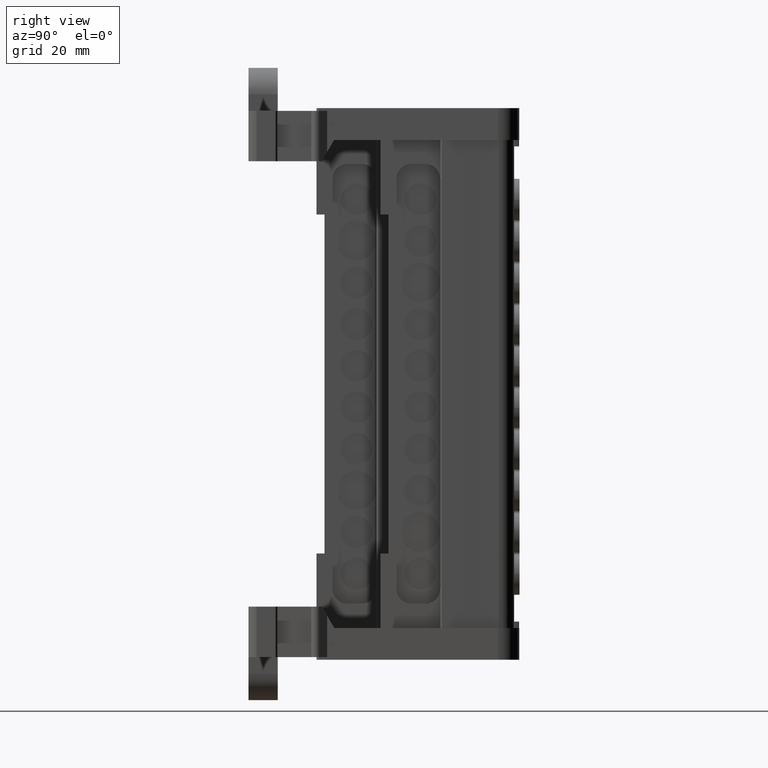
[diagram: clean part render]
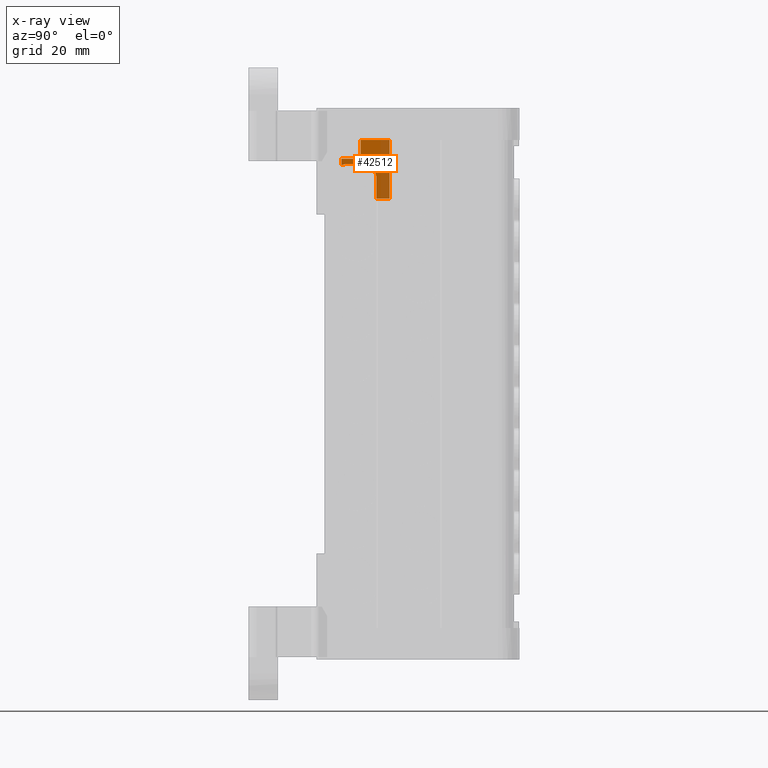
[diagram: x-ray — body ghosted, one internal face saturated and labeled with its STEP entity id]
A machine part, right view, then the same camera in x-ray: the body is ghosted and one INTERNAL B-rep face — a face not visible from any outside direction — is saturated and labeled: STEP entity #42512.
In plain terms, the highlighted planar face has unit normal (1, -0, -0).
Its self-contained STEP definition (entity closure, byte-faithful):
#4796 = VERTEX_POINT ( 'NONE', #48655 ) ;
#4915 = VERTEX_POINT ( 'NONE', #48793 ) ;
#4921 = VERTEX_POINT ( 'NONE', #48768 ) ;
#4931 = VERTEX_POINT ( 'NONE', #48825 ) ;
#4948 = VERTEX_POINT ( 'NONE', #48869 ) ;
#4972 = VERTEX_POINT ( 'NONE', #48863 ) ;
#4979 = VERTEX_POINT ( 'NONE', #48851 ) ;
#5005 = VERTEX_POINT ( 'NONE', #48882 ) ;
#5838 = B_SPLINE_CURVE_WITH_KNOTS ( 'NONE', 3,
 ( #61246, #61195, #61197, #61212 ),
 .UNSPECIFIED., .F., .F.,
 ( 4, 4 ),
 ( 0.0000000000000000000, 1.000000000000000000 ),
 .UNSPECIFIED. ) ;
#5880 = B_SPLINE_CURVE_WITH_KNOTS ( 'NONE', 3,
 ( #61111, #61220, #61225, #61262, #61202, #61193, #61252, #61272, #61208, #61236, #61199, #61206, #61210, #61243, #61266, #61238, #61254, #61245, #61191, #61222 ),
 .UNSPECIFIED., .F., .F.,
 ( 4, 1, 1, 1, 2, 2, 2, 1, 1, 1, 2, 2, 4 ),
 ( 0.0000000000000000000, 0.1250000000000267300, 0.1875000000000413300, 0.2187500000000492900, 0.2343750000000525100, 0.2500000000000556800, 0.5000000000000531800, 0.6250000000000504000, 0.6875000000000496300, 0.7187500000000486300, 0.7343750000000460700, 0.7500000000000435200, 1.000000000000000000 ),
 .UNSPECIFIED. ) ;
#8784 = VECTOR ( 'NONE', #61188, 1000.000000000000000 ) ;
#8795 = VECTOR ( 'NONE', #61336, 1000.000000000000000 ) ;
#8803 = VECTOR ( 'NONE', #61305, 1000.000000000000000 ) ;
#8817 = VECTOR ( 'NONE', #61540, 1000.000000000000000 ) ;
#8818 = VECTOR ( 'NONE', #61487, 1000.000000000000000 ) ;
#8836 = VECTOR ( 'NONE', #62298, 1000.000000000000000 ) ;
#15258 = CARTESIAN_POINT ( 'NONE',  ( -60.06949500594811300, 25.13621747466066500, 56.47722167457900600 ) ) ;
#15259 = LINE ( 'NONE', #15258, #25612 ) ;
#15277 = DIRECTION ( 'NONE',  ( 3.469446952988454100E-018, -4.572554536231870400E-031, 1.000000000000000000 ) ) ;
#23765 = EDGE_CURVE ( 'NONE', #58309, #58452, #84251, .T. ) ;
#25612 = VECTOR ( 'NONE', #15277, 1000.000000000000000 ) ;
#42512 = ADVANCED_FACE ( 'NONE', ( #61233 ), #61329, .T. ) ;
#45608 = EDGE_CURVE ( 'NONE', #4921, #4948, #5880, .T. ) ;
#45615 = EDGE_CURVE ( 'NONE', #4915, #4931, #5838, .T. ) ;
#45626 = EDGE_CURVE ( 'NONE', #5005, #4972, #61204, .T. ) ;
#45655 = EDGE_CURVE ( 'NONE', #4979, #4796, #61376, .T. ) ;
#45663 = EDGE_CURVE ( 'NONE', #4948, #4979, #61292, .T. ) ;
#45714 = EDGE_CURVE ( 'NONE', #4931, #4921, #61473, .T. ) ;
#45758 = EDGE_CURVE ( 'NONE', #4915, #4972, #61495, .T. ) ;
#46017 = EDGE_CURVE ( 'NONE', #58452, #5005, #62322, .T. ) ;
#47748 = ORIENTED_EDGE ( 'NONE', *, *, #69842, .T. ) ;
#47753 = ORIENTED_EDGE ( 'NONE', *, *, #45758, .F. ) ;
#47757 = ORIENTED_EDGE ( 'NONE', *, *, #23765, .T. ) ;
#47763 = ORIENTED_EDGE ( 'NONE', *, *, #45626, .T. ) ;
#47782 = ORIENTED_EDGE ( 'NONE', *, *, #46017, .T. ) ;
#47783 = ORIENTED_EDGE ( 'NONE', *, *, #45608, .T. ) ;
#48409 = ORIENTED_EDGE ( 'NONE', *, *, #45655, .T. ) ;
#48411 = ORIENTED_EDGE ( 'NONE', *, *, #45615, .T. ) ;
#48439 = ORIENTED_EDGE ( 'NONE', *, *, #45663, .T. ) ;
#48445 = ORIENTED_EDGE ( 'NONE', *, *, #45714, .T. ) ;
#48509 = CARTESIAN_POINT ( 'NONE',  ( -60.06949500594834700, 23.32882423996614900, 55.47218928989244800 ) ) ;
#48543 = CARTESIAN_POINT ( 'NONE',  ( -60.06949500594880900, 19.71403777057711800, 55.47218928989243400 ) ) ;
#48546 = CARTESIAN_POINT ( 'NONE',  ( -60.06949500594808500, 25.13621747466064300, 55.47218928989244800 ) ) ;
#48552 = CARTESIAN_POINT ( 'NONE',  ( -60.06949500594858900, 21.52143100527163000, 55.47218928989244800 ) ) ;
#48655 = CARTESIAN_POINT ( 'NONE',  ( -60.06949500594808500, 25.13621747466069000, 44.41683305832913900 ) ) ;
#48768 = CARTESIAN_POINT ( 'NONE',  ( -60.06949500594880900, 19.91373744683733400, 50.93757888755169500 ) ) ;
#48793 = CARTESIAN_POINT ( 'NONE',  ( -60.06949500594897300, 16.09475178553975300, 50.70458293993816300 ) ) ;
#48825 = CARTESIAN_POINT ( 'NONE',  ( -60.06949500594905100, 17.20544503260873600, 50.93757888755163800 ) ) ;
#48851 = CARTESIAN_POINT ( 'NONE',  ( -60.06949500594844000, 22.67757650472755800, 44.41683305832913900 ) ) ;
#48863 = CARTESIAN_POINT ( 'NONE',  ( -60.06949500594897300, 16.09475178553976300, 51.95457594348543800 ) ) ;
#48869 = CARTESIAN_POINT ( 'NONE',  ( -60.06949500594845400, 22.67757650472778500, 48.17373982966103100 ) ) ;
#48882 = CARTESIAN_POINT ( 'NONE',  ( -60.06949500594882400, 19.71403777057712500, 51.95457594348544500 ) ) ;
#58309 = VERTEX_POINT ( 'NONE', #58895 ) ;
#58452 = VERTEX_POINT ( 'NONE', #58955 ) ;
#58895 = CARTESIAN_POINT ( 'NONE',  ( -60.06949500594808500, 25.13621747466064300, 55.47218928989244800 ) ) ;
#58955 = CARTESIAN_POINT ( 'NONE',  ( -60.06949500594880900, 19.71403777057711800, 55.47218928989243400 ) ) ;
#61111 = CARTESIAN_POINT ( 'NONE',  ( -60.06949500594880900, 19.91373744683733400, 50.93757888755169500 ) ) ;
#61188 = DIRECTION ( 'NONE',  ( -1.317949113559220200E-013, -1.000000000000000000, -0.0000000000000000000 ) ) ;
#61191 = CARTESIAN_POINT ( 'NONE',  ( -60.06949500594846100, 22.67731568486657800, 48.52623170105782400 ) ) ;
#61193 = CARTESIAN_POINT ( 'NONE',  ( -60.06949500594867400, 20.84923332148967700, 50.77454396566470500 ) ) ;
#61195 = CARTESIAN_POINT ( 'NONE',  ( -60.06949500594925700, 16.44875304186201200, 50.85961594551245900 ) ) ;
#61197 = CARTESIAN_POINT ( 'NONE',  ( -60.06949500594920700, 16.81898412421833600, 50.93728126138361000 ) ) ;
#61199 = CARTESIAN_POINT ( 'NONE',  ( -60.06949500594853200, 22.00278481659935200, 49.99345121472347800 ) ) ;
#61202 = CARTESIAN_POINT ( 'NONE',  ( -60.06949500594868100, 20.78757941684463300, 50.79648695206348900 ) ) ;
#61204 = LINE ( 'NONE', #61276, #8784 ) ;
#61206 = CARTESIAN_POINT ( 'NONE',  ( -60.06949500594849700, 22.18075532422671600, 49.77536589798172900 ) ) ;
#61208 = CARTESIAN_POINT ( 'NONE',  ( -60.06949500594861700, 21.28534355097938000, 50.60341856654466900 ) ) ;
#61210 = CARTESIAN_POINT ( 'NONE',  ( -60.06949500594846800, 22.34620114319759000, 49.49265585571210800 ) ) ;
#61212 = CARTESIAN_POINT ( 'NONE',  ( -60.06949500594905100, 17.20544503260873600, 50.93757888755163800 ) ) ;
#61220 = CARTESIAN_POINT ( 'NONE',  ( -60.06949500594877400, 20.08963336907167000, 50.93744867317464300 ) ) ;
#61222 = CARTESIAN_POINT ( 'NONE',  ( -60.06949500594845400, 22.67757650472778500, 48.17373982966103100 ) ) ;
#61225 = CARTESIAN_POINT ( 'NONE',  ( -60.06949500594873800, 20.34872462765867200, 50.91309428291128800 ) ) ;
#61233 = FACE_OUTER_BOUND ( 'NONE', #80356, .T. ) ;
#61236 = CARTESIAN_POINT ( 'NONE',  ( -60.06949500594857500, 21.59863072714151500, 50.39730507936406000 ) ) ;
#61238 = CARTESIAN_POINT ( 'NONE',  ( -60.06949500594847500, 22.46566307640140900, 49.23535279344745400 ) ) ;
#61243 = CARTESIAN_POINT ( 'NONE',  ( -60.06949500594845400, 22.41837744270110400, 49.34423154139294400 ) ) ;
#61245 = CARTESIAN_POINT ( 'NONE',  ( -60.06949500594845400, 22.61263107291851800, 48.86534987948774500 ) ) ;
#61246 = CARTESIAN_POINT ( 'NONE',  ( -60.06949500594897300, 16.09475178553975300, 50.70458293993816300 ) ) ;
#61252 = CARTESIAN_POINT ( 'NONE',  ( -60.06949500594868100, 20.89023691157045100, 50.75941199413436100 ) ) ;
#61254 = CARTESIAN_POINT ( 'NONE',  ( -60.06949500594847500, 22.47545339363114900, 49.21145339529227400 ) ) ;
#61262 = CARTESIAN_POINT ( 'NONE',  ( -60.06949500594871700, 20.64268066933896500, 50.84240245738295300 ) ) ;
#61266 = CARTESIAN_POINT ( 'NONE',  ( -60.06949500594846800, 22.44705015463506100, 49.27910627243091600 ) ) ;
#61272 = CARTESIAN_POINT ( 'NONE',  ( -60.06949500594866700, 20.90895125907406900, 50.75228170702984400 ) ) ;
#61276 = CARTESIAN_POINT ( 'NONE',  ( -60.06949500595330000, -14.24287889956782000, 51.95457594348544500 ) ) ;
#61292 = LINE ( 'NONE', #61317, #8803 ) ;
#61305 = DIRECTION ( 'NONE',  ( -3.469446952988454100E-018, 4.572554536231870400E-031, -1.000000000000000000 ) ) ;
#61309 = CARTESIAN_POINT ( 'NONE',  ( -60.06949500595330000, -14.24287889956782000, 44.41683305832913900 ) ) ;
#61317 = CARTESIAN_POINT ( 'NONE',  ( -60.06949500594844000, 22.67757650472751900, 56.47722167457900600 ) ) ;
#61329 = PLANE ( 'NONE',  #78202 ) ;
#61336 = DIRECTION ( 'NONE',  ( 1.317949113559220200E-013, 1.000000000000000000, 0.0000000000000000000 ) ) ;
#61376 = LINE ( 'NONE', #61309, #8795 ) ;
#61403 = CARTESIAN_POINT ( 'NONE',  ( -60.06949500595330000, -14.24287889956782000, 50.93757888755163800 ) ) ;
#61473 = LINE ( 'NONE', #61403, #8818 ) ;
#61487 = DIRECTION ( 'NONE',  ( 1.317949113559220200E-013, 1.000000000000000000, 0.0000000000000000000 ) ) ;
#61495 = LINE ( 'NONE', #61534, #8817 ) ;
#61506 = CARTESIAN_POINT ( 'NONE',  ( -60.06949500595330000, -14.24287889956782000, 56.47722167457900600 ) ) ;
#61534 = CARTESIAN_POINT ( 'NONE',  ( -60.06949500594882400, 16.09475178553977100, 57.76332860389700100 ) ) ;
#61540 = DIRECTION ( 'NONE',  ( -1.949997755667966900E-015, -5.109752598969704600E-016, 1.000000000000000000 ) ) ;
#61614 = DIRECTION ( 'NONE',  ( 1.000000000000000000, -1.317949113559220200E-013, -3.469446952988454100E-018 ) ) ;
#61716 = DIRECTION ( 'NONE',  ( 1.317949113559220200E-013, 1.000000000000000000, 0.0000000000000000000 ) ) ;
#62259 = CARTESIAN_POINT ( 'NONE',  ( -60.06949500594882400, 19.71403777057711800, 56.47722167457900600 ) ) ;
#62298 = DIRECTION ( 'NONE',  ( -3.469446952988454100E-018, 4.572554536231870400E-031, -1.000000000000000000 ) ) ;
#62322 = LINE ( 'NONE', #62259, #8836 ) ;
#69842 = EDGE_CURVE ( 'NONE', #4796, #58309, #15259, .T. ) ;
#78202 = AXIS2_PLACEMENT_3D ( 'NONE', #61506, #61614, #61716 ) ;
#80356 = EDGE_LOOP ( 'NONE', ( #48445, #47783, #48439, #48409, #47748, #47757, #47782, #47763, #47753, #48411 ) ) ;
#84251 = B_SPLINE_CURVE_WITH_KNOTS ( 'NONE', 3,
 ( #48546, #48509, #48552, #48543 ),
 .UNSPECIFIED., .F., .F.,
 ( 4, 4 ),
 ( 0.0000000000000000000, 1.000000000000000000 ),
 .UNSPECIFIED. ) ;